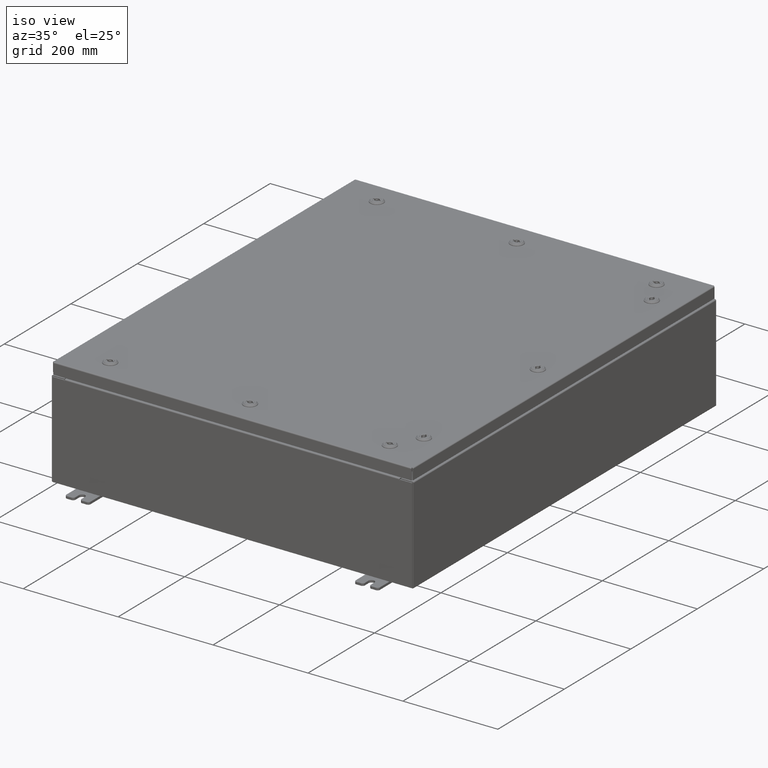
[diagram: clean part render]
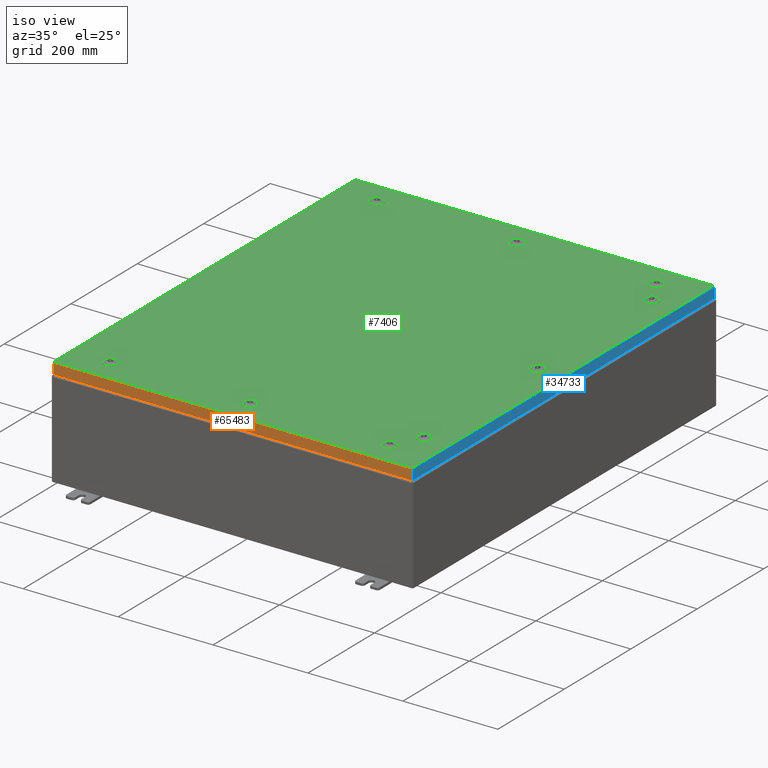
[diagram: same view with three faces highlighted in distinct colors, each labeled with its STEP entity id]
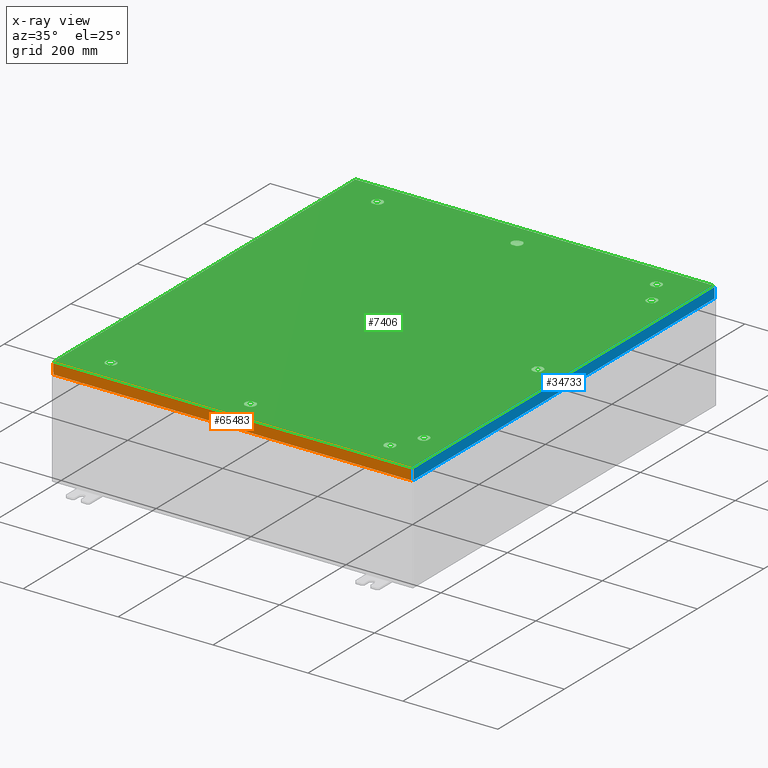
[diagram: x-ray of the same camera — body ghosted, the three highlighted faces saturated]
A machine part, iso view with three faces highlighted in distinct colors.
The next image is the same camera in x-ray (body ghosted, the three faces saturated) — at least one of them is partly hidden behind the body in this view.
Their STEP definitions:

[orange] entity #65483 — the highlighted planar face has unit normal (-0, 1, -0).
#252 = EDGE_CURVE ( 'NONE', #669, #10912, #28088, .T. ) ;
#669 = VERTEX_POINT ( 'NONE', #52515 ) ;
#2411 = VERTEX_POINT ( 'NONE', #59407 ) ;
#6523 = DIRECTION ( 'NONE',  ( -3.241995248935437300E-031, 1.000000000000000000, -2.532419924601866100E-015 ) ) ;
#6745 = ORIENTED_EDGE ( 'NONE', *, *, #37901, .F. ) ;
#10611 = EDGE_CURVE ( 'NONE', #2411, #669, #59364, .T. ) ;
#10912 = VERTEX_POINT ( 'NONE', #51334 ) ;
#11742 = ORIENTED_EDGE ( 'NONE', *, *, #65169, .T. ) ;
#13923 = VECTOR ( 'NONE', #45874, 39.37007874015748100 ) ;
#14615 = VECTOR ( 'NONE', #51066, 39.37007874015748100 ) ;
#16357 = VECTOR ( 'NONE', #19847, 39.37007874015748100 ) ;
#18735 = VECTOR ( 'NONE', #28824, 39.37007874015748100 ) ;
#19669 = EDGE_LOOP ( 'NONE', ( #6745, #11742, #43534, #46150 ) ) ;
#19847 = DIRECTION ( 'NONE',  ( 1.000000000000000000, 3.241995248935437300E-031, -8.117058051628660600E-046 ) ) ;
#27388 = LINE ( 'NONE', #35551, #13923 ) ;
#28088 = LINE ( 'NONE', #58294, #14615 ) ;
#28824 = DIRECTION ( 'NONE',  ( -0.0000000000000000000, -2.532419924601866100E-015, -1.000000000000000000 ) ) ;
#31858 = CARTESIAN_POINT ( 'NONE',  ( 5.815328977777940600E-030, -17.93750000000000000, 4.568609605355756000E-014 ) ) ;
#32441 = AXIS2_PLACEMENT_3D ( 'NONE', #31858, #6523, #42122 ) ;
#35551 = CARTESIAN_POINT ( 'NONE',  ( -14.84865786437627100, -17.93750000000000000, 4.568609605355756000E-014 ) ) ;
#37901 = EDGE_CURVE ( 'NONE', #61147, #2411, #56976, .T. ) ;
#42122 = DIRECTION ( 'NONE',  ( 0.0000000000000000000, 2.532419924601866100E-015, 1.000000000000000000 ) ) ;
#43320 = FACE_OUTER_BOUND ( 'NONE', #19669, .T. ) ;
#43534 = ORIENTED_EDGE ( 'NONE', *, *, #252, .F. ) ;
#45874 = DIRECTION ( 'NONE',  ( 0.0000000000000000000, -2.532419924601866100E-015, -1.000000000000000000 ) ) ;
#46150 = ORIENTED_EDGE ( 'NONE', *, *, #10611, .F. ) ;
#51066 = DIRECTION ( 'NONE',  ( -1.000000000000000000, 4.379057701015054300E-047, 1.280196549332207300E-016 ) ) ;
#51334 = CARTESIAN_POINT ( 'NONE',  ( -14.84865786437627300, -17.93750000000000400, -0.9376999999999958700 ) ) ;
#52515 = CARTESIAN_POINT ( 'NONE',  ( 14.84865786437626800, -17.93750000000000400, -0.9376999999999997600 ) ) ;
#56976 = LINE ( 'NONE', #60604, #16357 ) ;
#58294 = CARTESIAN_POINT ( 'NONE',  ( 14.93749999999999800, -17.93750000000000400, -0.9376999999999997600 ) ) ;
#59364 = LINE ( 'NONE', #64450, #18735 ) ;
#59407 = CARTESIAN_POINT ( 'NONE',  ( 14.84865786437626900, -17.93750000000000000, -0.08770000000000008300 ) ) ;
#60604 = CARTESIAN_POINT ( 'NONE',  ( 14.93749999999999800, -17.93750000000000000, -0.08770000000000008300 ) ) ;
#61147 = VERTEX_POINT ( 'NONE', #65081 ) ;
#62365 = PLANE ( 'NONE',  #32441 ) ;
#64450 = CARTESIAN_POINT ( 'NONE',  ( 14.84865786437626800, -17.93750000000000000, -0.07469999999999980800 ) ) ;
#65081 = CARTESIAN_POINT ( 'NONE',  ( -14.84865786437627300, -17.93750000000000000, -0.08770000000000008300 ) ) ;
#65169 = EDGE_CURVE ( 'NONE', #61147, #10912, #27388, .T. ) ;
#65483 = ADVANCED_FACE ( 'NONE', ( #43320 ), #62365, .F. ) ;

[blue] entity #34733 — the highlighted planar face has unit normal (1, 0, 0).
#2171 = CARTESIAN_POINT ( 'NONE',  ( 14.93749999999999800, 0.0000000000000000000, 3.808883627975194400E-014 ) ) ;
#2388 = DIRECTION ( 'NONE',  ( 2.532419924601866100E-015, 0.0000000000000000000, -1.000000000000000000 ) ) ;
#4165 = VECTOR ( 'NONE', #62617, 39.37007874015748100 ) ;
#4184 = EDGE_CURVE ( 'NONE', #55525, #7599, #36700, .T. ) ;
#6107 = AXIS2_PLACEMENT_3D ( 'NONE', #2171, #32822, #2388 ) ;
#6430 = EDGE_CURVE ( 'NONE', #7599, #63943, #52553, .T. ) ;
#7599 = VERTEX_POINT ( 'NONE', #64508 ) ;
#8464 = ORIENTED_EDGE ( 'NONE', *, *, #15959, .F. ) ;
#10302 = VECTOR ( 'NONE', #17336, 39.37007874015748100 ) ;
#11494 = ORIENTED_EDGE ( 'NONE', *, *, #6430, .T. ) ;
#15959 = EDGE_CURVE ( 'NONE', #34176, #63943, #30628, .T. ) ;
#16479 = FACE_OUTER_BOUND ( 'NONE', #41333, .T. ) ;
#17336 = DIRECTION ( 'NONE',  ( 0.0000000000000000000, -1.000000000000000000, 0.0000000000000000000 ) ) ;
#19645 = EDGE_CURVE ( 'NONE', #55525, #34176, #44804, .T. ) ;
#20293 = CARTESIAN_POINT ( 'NONE',  ( 14.93749999999999800, -17.84865786437627100, -0.08770000000000008300 ) ) ;
#20611 = DIRECTION ( 'NONE',  ( -2.532419924601866100E-015, -6.982962677686265900E-015, 1.000000000000000000 ) ) ;
#25781 = ORIENTED_EDGE ( 'NONE', *, *, #19645, .F. ) ;
#29024 = VECTOR ( 'NONE', #20611, 39.37007874015748100 ) ;
#30628 = LINE ( 'NONE', #51143, #29024 ) ;
#32822 = DIRECTION ( 'NONE',  ( 1.000000000000000000, 0.0000000000000000000, 2.532419924601866100E-015 ) ) ;
#33300 = CARTESIAN_POINT ( 'NONE',  ( 14.93749999999999800, 17.84865786437626800, 1.627253479934829100E-013 ) ) ;
#34176 = VERTEX_POINT ( 'NONE', #48978 ) ;
#34733 = ADVANCED_FACE ( 'NONE', ( #16479 ), #48011, .T. ) ;
#34812 = DIRECTION ( 'NONE',  ( -2.532419924601866100E-015, -6.982962677686265900E-015, 1.000000000000000000 ) ) ;
#36700 = LINE ( 'NONE', #33300, #62216 ) ;
#37242 = CARTESIAN_POINT ( 'NONE',  ( 14.93750000000000000, 17.84865786437627500, -0.9376999999999997600 ) ) ;
#40558 = ORIENTED_EDGE ( 'NONE', *, *, #4184, .T. ) ;
#41333 = EDGE_LOOP ( 'NONE', ( #8464, #25781, #40558, #11494 ) ) ;
#44804 = LINE ( 'NONE', #57532, #4165 ) ;
#48011 = PLANE ( 'NONE',  #6107 ) ;
#48978 = CARTESIAN_POINT ( 'NONE',  ( 14.93750000000000000, -17.84865786437626400, -0.9376999999999997600 ) ) ;
#51143 = CARTESIAN_POINT ( 'NONE',  ( 14.93749999999999800, -17.84865786437627100, -0.07469999999999980800 ) ) ;
#52553 = LINE ( 'NONE', #59204, #10302 ) ;
#55525 = VERTEX_POINT ( 'NONE', #37242 ) ;
#57532 = CARTESIAN_POINT ( 'NONE',  ( 14.93750000000000000, -17.93750000000000000, -0.9376999999999997600 ) ) ;
#59204 = CARTESIAN_POINT ( 'NONE',  ( 14.93749999999999800, 0.0000000000000000000, -0.08770000000000008300 ) ) ;
#62216 = VECTOR ( 'NONE', #34812, 39.37007874015748100 ) ;
#62617 = DIRECTION ( 'NONE',  ( 0.0000000000000000000, -1.000000000000000000, 0.0000000000000000000 ) ) ;
#63943 = VERTEX_POINT ( 'NONE', #20293 ) ;
#64508 = CARTESIAN_POINT ( 'NONE',  ( 14.93749999999999800, 17.84865786437626800, -0.08770000000000008300 ) ) ;

[green] entity #7406 — the highlighted planar face has unit normal (0, 0, -1).
#269 = CARTESIAN_POINT ( 'NONE',  ( 12.39280000000001400, 13.69945237526790600, 0.0000000000000000000 ) ) ;
#454 = ORIENTED_EDGE ( 'NONE', *, *, #30860, .F. ) ;
#531 = CARTESIAN_POINT ( 'NONE',  ( -11.36304762473210200, 15.39279999999999400, 0.0000000000000000000 ) ) ;
#721 = VECTOR ( 'NONE', #32742, 39.37007874015748100 ) ;
#754 = DIRECTION ( 'NONE',  ( -1.000000000000000000, -1.095739467627832000E-014, 6.982962677686228800E-015 ) ) ;
#850 = CIRCLE ( 'NONE', #55730, 0.4424999999999983400 ) ;
#967 = CARTESIAN_POINT ( 'NONE',  ( 1.529834876451987200E-014, -15.78779999999999000, -2.521317385144146900E-013 ) ) ;
#1518 = AXIS2_PLACEMENT_3D ( 'NONE', #9059, #13785, #56111 ) ;
#2067 = EDGE_LOOP ( 'NONE', ( #45513, #25975, #42009, #25645 ) ) ;
#2258 = VERTEX_POINT ( 'NONE', #27779 ) ;
#2444 = ORIENTED_EDGE ( 'NONE', *, *, #21033, .F. ) ;
#2771 = ORIENTED_EDGE ( 'NONE', *, *, #16721, .F. ) ;
#3275 = ORIENTED_EDGE ( 'NONE', *, *, #40839, .F. ) ;
#3328 = VERTEX_POINT ( 'NONE', #6150 ) ;
#3369 = DIRECTION ( 'NONE',  ( 0.0000000000000000000, 1.000000000000000000, 6.982962677686304600E-015 ) ) ;
#3390 = AXIS2_PLACEMENT_3D ( 'NONE', #7861, #43468, #13014 ) ;
#3468 = DIRECTION ( 'NONE',  ( -0.0000000000000000000, -6.982962677686266700E-015, 1.000000000000000000 ) ) ;
#3713 = DIRECTION ( 'NONE',  ( -1.000000000000000000, 0.0000000000000000000, 6.982962677686304600E-015 ) ) ;
#3744 = EDGE_LOOP ( 'NONE', ( #12510, #50078, #24791, #27893, #60855 ) ) ;
#3819 = DIRECTION ( 'NONE',  ( 1.000000000000000000, 0.0000000000000000000, 0.0000000000000000000 ) ) ;
#3986 = DIRECTION ( 'NONE',  ( 1.000000000000000000, 0.0000000000000000000, 0.0000000000000000000 ) ) ;
#4003 = EDGE_CURVE ( 'NONE', #45943, #57057, #31163, .T. ) ;
#4035 = CARTESIAN_POINT ( 'NONE',  ( 12.78780000000000600, 13.50000000000001800, 0.0000000000000000000 ) ) ;
#4257 = CARTESIAN_POINT ( 'NONE',  ( 11.36304762473210100, -15.39279999999999900, -7.914855633430593000E-015 ) ) ;
#4520 = CARTESIAN_POINT ( 'NONE',  ( 13.18280000000000400, 13.30054762473213300, 0.0000000000000000000 ) ) ;
#4746 = VERTEX_POINT ( 'NONE', #23332 ) ;
#4794 = CARTESIAN_POINT ( 'NONE',  ( 11.36304762473209400, 16.18279999999998600, -2.414586126232980000E-013 ) ) ;
#4993 = LINE ( 'NONE', #31382, #18527 ) ;
#5198 = EDGE_LOOP ( 'NONE', ( #21999, #19514, #23382, #28560, #2444 ) ) ;
#5202 = VECTOR ( 'NONE', #21405, 39.37007874015748100 ) ;
#5350 = DIRECTION ( 'NONE',  ( 0.0000000000000000000, 0.0000000000000000000, 1.000000000000000000 ) ) ;
#5376 = ORIENTED_EDGE ( 'NONE', *, *, #34425, .F. ) ;
#5858 = EDGE_CURVE ( 'NONE', #50811, #16127, #39759, .T. ) ;
#6003 = CIRCLE ( 'NONE', #46167, 0.4424999999999983400 ) ;
#6016 = CARTESIAN_POINT ( 'NONE',  ( 0.4425000000000126100, 15.78779999999999000, 0.0000000000000000000 ) ) ;
#6054 = DIRECTION ( 'NONE',  ( 0.0000000000000000000, 0.0000000000000000000, 1.000000000000000000 ) ) ;
#6065 = DIRECTION ( 'NONE',  ( 0.0000000000000000000, 1.000000000000000000, 6.982962677686304600E-015 ) ) ;
#6150 = CARTESIAN_POINT ( 'NONE',  ( 12.39280000000001400, -13.69945237526790600, -9.566276464123621500E-014 ) ) ;
#6160 = CIRCLE ( 'NONE', #20458, 0.4424999999999961700 ) ;
#6305 = EDGE_CURVE ( 'NONE', #31600, #45086, #40535, .T. ) ;
#6397 = CARTESIAN_POINT ( 'NONE',  ( 0.1994523752678995500, 15.39279999999999400, 0.0000000000000000000 ) ) ;
#6592 = VERTEX_POINT ( 'NONE', #63791 ) ;
#6792 = LINE ( 'NONE', #31623, #5202 ) ;
#6885 = CIRCLE ( 'NONE', #19961, 0.4424999999999983400 ) ;
#7019 = CARTESIAN_POINT ( 'NONE',  ( -0.1994523752678657400, -16.18279999999998600, 0.0000000000000000000 ) ) ;
#7039 = AXIS2_PLACEMENT_3D ( 'NONE', #50595, #18266, #19418 ) ;
#7054 = FACE_BOUND ( 'NONE', #5198, .T. ) ;
#7103 = EDGE_CURVE ( 'NONE', #24029, #49503, #58867, .T. ) ;
#7294 = DIRECTION ( 'NONE',  ( 1.000000000000000000, -0.0000000000000000000, -0.0000000000000000000 ) ) ;
#7406 = ADVANCED_FACE ( 'NONE', ( #11867, #8658, #61206, #47674, #34075, #20568, #7054, #59617, #46095, #32491 ), #65594, .F. ) ;
#7540 = AXIS2_PLACEMENT_3D ( 'NONE', #35778, #5350, #40906 ) ;
#7633 = CARTESIAN_POINT ( 'NONE',  ( -11.11999999999998900, 15.78779999999999000, 0.0000000000000000000 ) ) ;
#7733 = DIRECTION ( 'NONE',  ( 5.478697338139220100E-015, 1.000000000000000000, 6.982962677686228100E-015 ) ) ;
#7773 = CARTESIAN_POINT ( 'NONE',  ( 1.529834876451987200E-014, 15.78779999999999000, 0.0000000000000000000 ) ) ;
#7861 = CARTESIAN_POINT ( 'NONE',  ( 12.78780000000000600, -13.50000000000001800, -9.426999614876466400E-014 ) ) ;
#7995 = CARTESIAN_POINT ( 'NONE',  ( -0.1994523752678689600, 15.39279999999999400, 0.0000000000000000000 ) ) ;
#8046 = ORIENTED_EDGE ( 'NONE', *, *, #59420, .F. ) ;
#8048 = EDGE_CURVE ( 'NONE', #49091, #12746, #35615, .T. ) ;
#8108 = VERTEX_POINT ( 'NONE', #47206 ) ;
#8117 = CARTESIAN_POINT ( 'NONE',  ( -11.36304762473210200, 15.39279999999999400, 0.0000000000000000000 ) ) ;
#8658 = FACE_BOUND ( 'NONE', #14146, .T. ) ;
#8736 = VERTEX_POINT ( 'NONE', #32138 ) ;
#8757 = ORIENTED_EDGE ( 'NONE', *, *, #40297, .F. ) ;
#9004 = VERTEX_POINT ( 'NONE', #24544 ) ;
#9059 = CARTESIAN_POINT ( 'NONE',  ( 11.56249999999998200, -15.78779999999999500, -9.280357398645127900E-015 ) ) ;
#9079 = AXIS2_PLACEMENT_3D ( 'NONE', #7773, #11603, #3986 ) ;
#9133 = DIRECTION ( 'NONE',  ( 1.000000000000000000, 0.0000000000000000000, 0.0000000000000000000 ) ) ;
#9191 = VECTOR ( 'NONE', #33020, 39.37007874015748100 ) ;
#9270 = CARTESIAN_POINT ( 'NONE',  ( 1.529834876451987200E-014, -15.78779999999999000, -2.521317385144146900E-013 ) ) ;
#9521 = CIRCLE ( 'NONE', #55465, 0.4424999999999969000 ) ;
#10437 = CARTESIAN_POINT ( 'NONE',  ( 0.0000000000000000000, 0.0000000000000000000, 0.0000000000000000000 ) ) ;
#10795 = CARTESIAN_POINT ( 'NONE',  ( 12.39280000000001400, 13.69945237526790600, 0.0000000000000000000 ) ) ;
#11059 = EDGE_CURVE ( 'NONE', #61762, #6592, #6885, .T. ) ;
#11463 = VERTEX_POINT ( 'NONE', #65662 ) ;
#11576 = DIRECTION ( 'NONE',  ( -1.000000000000000000, -0.0000000000000000000, -0.0000000000000000000 ) ) ;
#11603 = DIRECTION ( 'NONE',  ( 0.0000000000000000000, 0.0000000000000000000, 1.000000000000000000 ) ) ;
#11867 = FACE_BOUND ( 'NONE', #55023, .T. ) ;
#11923 = DIRECTION ( 'NONE',  ( 0.0000000000000000000, 0.0000000000000000000, 1.000000000000000000 ) ) ;
#12054 = CARTESIAN_POINT ( 'NONE',  ( -11.56249999999998800, 15.78779999999999000, 0.0000000000000000000 ) ) ;
#12510 = ORIENTED_EDGE ( 'NONE', *, *, #8048, .F. ) ;
#12697 = LINE ( 'NONE', #13401, #24559 ) ;
#12746 = VERTEX_POINT ( 'NONE', #13775 ) ;
#12825 = CIRCLE ( 'NONE', #32659, 0.4424999999999983400 ) ;
#13014 = DIRECTION ( 'NONE',  ( 0.0000000000000000000, 1.000000000000000000, 6.982962677686270700E-015 ) ) ;
#13039 = AXIS2_PLACEMENT_3D ( 'NONE', #17551, #53176, #22633 ) ;
#13328 = AXIS2_PLACEMENT_3D ( 'NONE', #64761, #34233, #3819 ) ;
#13392 = EDGE_CURVE ( 'NONE', #40341, #40304, #6160, .T. ) ;
#13401 = CARTESIAN_POINT ( 'NONE',  ( 13.18280000000000200, 0.1994523752679009100, 0.0000000000000000000 ) ) ;
#13775 = CARTESIAN_POINT ( 'NONE',  ( 0.1994523752679070700, -16.18279999999998300, -2.548900087721007400E-013 ) ) ;
#13785 = DIRECTION ( 'NONE',  ( -6.982962677686266700E-015, -6.982962677686266700E-015, 1.000000000000000000 ) ) ;
#14048 = ORIENTED_EDGE ( 'NONE', *, *, #11059, .F. ) ;
#14097 = CARTESIAN_POINT ( 'NONE',  ( -11.36304762473209400, 16.18279999999998300, 0.0000000000000000000 ) ) ;
#14146 = EDGE_LOOP ( 'NONE', ( #28983, #46299, #46377, #33483 ) ) ;
#14338 = ORIENTED_EDGE ( 'NONE', *, *, #4003, .F. ) ;
#14351 = CARTESIAN_POINT ( 'NONE',  ( 11.56249999999998800, 15.78779999999999500, -2.428513811157696100E-013 ) ) ;
#14438 = DIRECTION ( 'NONE',  ( 0.0000000000000000000, 1.000000000000000000, 6.982962677686270700E-015 ) ) ;
#14711 = CARTESIAN_POINT ( 'NONE',  ( -11.36304762473210200, -15.39279999999999900, -2.493734682567286900E-013 ) ) ;
#15295 = CARTESIAN_POINT ( 'NONE',  ( 11.76195237526786600, -16.18279999999999000, -1.064585916385969600E-014 ) ) ;
#15320 = ORIENTED_EDGE ( 'NONE', *, *, #7103, .F. ) ;
#15505 = VERTEX_POINT ( 'NONE', #48034 ) ;
#15520 = CARTESIAN_POINT ( 'NONE',  ( -14.84980000000000200, -17.84980000000000200, -2.048885995248197400E-016 ) ) ;
#15569 = DIRECTION ( 'NONE',  ( 1.000000000000000000, 1.095739467627832000E-014, 7.785697190085955000E-029 ) ) ;
#15835 = CARTESIAN_POINT ( 'NONE',  ( 11.56249999999998800, 15.78779999999999500, -2.428513811157696100E-013 ) ) ;
#15942 = VECTOR ( 'NONE', #56242, 39.37007874015748100 ) ;
#16094 = VECTOR ( 'NONE', #55227, 39.37007874015748100 ) ;
#16127 = VERTEX_POINT ( 'NONE', #36593 ) ;
#16210 = VECTOR ( 'NONE', #25594, 39.37007874015748100 ) ;
#16376 = ORIENTED_EDGE ( 'NONE', *, *, #18540, .F. ) ;
#16461 = DIRECTION ( 'NONE',  ( -1.000000000000000000, -0.0000000000000000000, -6.982962677686306200E-015 ) ) ;
#16487 = CARTESIAN_POINT ( 'NONE',  ( 0.4425000000000126100, -15.78779999999999000, -2.521317385144146900E-013 ) ) ;
#16569 = CARTESIAN_POINT ( 'NONE',  ( 0.1994523752678995500, -15.39279999999999400, -2.493734682567286900E-013 ) ) ;
#16721 = EDGE_CURVE ( 'NONE', #34699, #31600, #41759, .T. ) ;
#17071 = VECTOR ( 'NONE', #41670, 39.37007874015748100 ) ;
#17082 = DIRECTION ( 'NONE',  ( -0.0000000000000000000, -6.982962677686266700E-015, 1.000000000000000000 ) ) ;
#17159 = DIRECTION ( 'NONE',  ( 1.000000000000000000, 0.0000000000000000000, 0.0000000000000000000 ) ) ;
#17210 = EDGE_CURVE ( 'NONE', #37654, #11463, #18653, .T. ) ;
#17226 = DIRECTION ( 'NONE',  ( -6.982962677686266700E-015, -6.982962677686266700E-015, 1.000000000000000000 ) ) ;
#17551 = CARTESIAN_POINT ( 'NONE',  ( 11.56249999999998200, -15.78779999999999500, -9.280357398645127900E-015 ) ) ;
#18266 = DIRECTION ( 'NONE',  ( -0.0000000000000000000, -6.982962677686266700E-015, 1.000000000000000000 ) ) ;
#18527 = VECTOR ( 'NONE', #21163, 39.37007874015748100 ) ;
#18540 = EDGE_CURVE ( 'NONE', #37340, #41142, #25718, .T. ) ;
#18653 = LINE ( 'NONE', #16569, #17071 ) ;
#18854 = EDGE_CURVE ( 'NONE', #39746, #43164, #31280, .T. ) ;
#19414 = DIRECTION ( 'NONE',  ( -1.000000000000000000, 0.0000000000000000000, 6.982962677686270700E-015 ) ) ;
#19417 = LINE ( 'NONE', #26662, #31342 ) ;
#19418 = DIRECTION ( 'NONE',  ( 0.0000000000000000000, 1.000000000000000000, 6.982962677686270700E-015 ) ) ;
#19514 = ORIENTED_EDGE ( 'NONE', *, *, #63478, .F. ) ;
#19759 = DIRECTION ( 'NONE',  ( 0.0000000000000000000, -1.000000000000000000, 0.0000000000000000000 ) ) ;
#19961 = AXIS2_PLACEMENT_3D ( 'NONE', #42380, #11923, #47520 ) ;
#20231 = CIRCLE ( 'NONE', #13328, 0.4424999999999961700 ) ;
#20303 = LINE ( 'NONE', #46794, #45838 ) ;
#20422 = CARTESIAN_POINT ( 'NONE',  ( 11.36304762473210200, 15.39279999999999900, -2.414586126232981000E-013 ) ) ;
#20458 = AXIS2_PLACEMENT_3D ( 'NONE', #64295, #33787, #3369 ) ;
#20552 = VECTOR ( 'NONE', #59358, 39.37007874015748100 ) ;
#20568 = FACE_BOUND ( 'NONE', #3744, .T. ) ;
#20676 = EDGE_LOOP ( 'NONE', ( #35809, #63502, #22575, #49038 ) ) ;
#20907 = DIRECTION ( 'NONE',  ( -1.000000000000000000, 0.0000000000000000000, 6.982962677686304600E-015 ) ) ;
#20933 = VECTOR ( 'NONE', #42586, 39.37007874015748100 ) ;
#21033 = EDGE_CURVE ( 'NONE', #35074, #23593, #23178, .T. ) ;
#21087 = VERTEX_POINT ( 'NONE', #4520 ) ;
#21163 = DIRECTION ( 'NONE',  ( -1.095739467627836100E-014, -1.000000000000000000, 0.0000000000000000000 ) ) ;
#21219 = DIRECTION ( 'NONE',  ( 0.0000000000000000000, 0.0000000000000000000, 1.000000000000000000 ) ) ;
#21405 = DIRECTION ( 'NONE',  ( -5.478697338139220100E-015, 1.000000000000000000, -0.0000000000000000000 ) ) ;
#21999 = ORIENTED_EDGE ( 'NONE', *, *, #64101, .F. ) ;
#22575 = ORIENTED_EDGE ( 'NONE', *, *, #65403, .T. ) ;
#22633 = DIRECTION ( 'NONE',  ( 1.000000000000000000, 0.0000000000000000000, 6.982962677686252500E-015 ) ) ;
#22651 = CARTESIAN_POINT ( 'NONE',  ( 12.39280000000001000, 13.30054762473213400, 0.0000000000000000000 ) ) ;
#22868 = EDGE_CURVE ( 'NONE', #23593, #2258, #35794, .T. ) ;
#23178 = CIRCLE ( 'NONE', #63971, 0.4424999999999983400 ) ;
#23332 = CARTESIAN_POINT ( 'NONE',  ( 12.39280000000001000, -0.1994523752678671000, 0.0000000000000000000 ) ) ;
#23380 = EDGE_CURVE ( 'NONE', #31252, #45943, #58217, .T. ) ;
#23382 = ORIENTED_EDGE ( 'NONE', *, *, #47038, .F. ) ;
#23467 = CARTESIAN_POINT ( 'NONE',  ( 11.36304762473210200, 15.39279999999999900, -2.414586126232981000E-013 ) ) ;
#23560 = DIRECTION ( 'NONE',  ( -5.478697338139235000E-015, 1.000000000000000000, -0.0000000000000000000 ) ) ;
#23593 = VERTEX_POINT ( 'NONE', #23467 ) ;
#24029 = VERTEX_POINT ( 'NONE', #40007 ) ;
#24356 = VERTEX_POINT ( 'NONE', #41570 ) ;
#24481 = ORIENTED_EDGE ( 'NONE', *, *, #5858, .F. ) ;
#24544 = CARTESIAN_POINT ( 'NONE',  ( 11.76195237526786700, 16.18279999999999000, 0.0000000000000000000 ) ) ;
#24559 = VECTOR ( 'NONE', #23560, 39.37007874015748100 ) ;
#24788 = CARTESIAN_POINT ( 'NONE',  ( 1.529834876451987200E-014, -15.78779999999999000, -2.521317385144146900E-013 ) ) ;
#24791 = ORIENTED_EDGE ( 'NONE', *, *, #17210, .F. ) ;
#25191 = DIRECTION ( 'NONE',  ( 0.0000000000000000000, 0.0000000000000000000, 1.000000000000000000 ) ) ;
#25220 = CARTESIAN_POINT ( 'NONE',  ( 0.1994523752678995500, 15.39279999999999400, 0.0000000000000000000 ) ) ;
#25257 = ORIENTED_EDGE ( 'NONE', *, *, #44994, .F. ) ;
#25355 = LINE ( 'NONE', #43353, #52483 ) ;
#25380 = CARTESIAN_POINT ( 'NONE',  ( 12.00499999999998300, 15.78779999999999500, -2.459413421006457100E-013 ) ) ;
#25538 = ORIENTED_EDGE ( 'NONE', *, *, #23380, .F. ) ;
#25564 = VERTEX_POINT ( 'NONE', #40051 ) ;
#25594 = DIRECTION ( 'NONE',  ( -1.095739467627838000E-014, -1.000000000000000000, 0.0000000000000000000 ) ) ;
#25625 = CARTESIAN_POINT ( 'NONE',  ( 13.18280000000000400, -13.30054762473213300, -9.287722765629316300E-014 ) ) ;
#25645 = ORIENTED_EDGE ( 'NONE', *, *, #42605, .F. ) ;
#25718 = CIRCLE ( 'NONE', #3390, 0.4424999999999983400 ) ;
#25975 = ORIENTED_EDGE ( 'NONE', *, *, #37940, .F. ) ;
#26271 = CARTESIAN_POINT ( 'NONE',  ( -11.76195237526786700, -16.18279999999999000, 0.0000000000000000000 ) ) ;
#26662 = CARTESIAN_POINT ( 'NONE',  ( 14.84979999999999700, 17.84979999999999800, -2.048885995248197400E-016 ) ) ;
#27480 = EDGE_CURVE ( 'NONE', #49503, #61762, #36822, .T. ) ;
#27495 = CARTESIAN_POINT ( 'NONE',  ( -11.36304762473209400, -16.18279999999998600, -2.548900087721007400E-013 ) ) ;
#27779 = CARTESIAN_POINT ( 'NONE',  ( 11.76195237526786900, 15.39279999999999900, -2.442441496082410700E-013 ) ) ;
#27893 = ORIENTED_EDGE ( 'NONE', *, *, #32205, .F. ) ;
#27907 = CARTESIAN_POINT ( 'NONE',  ( 11.36304762473209200, -16.18279999999998600, -1.343139614880271000E-014 ) ) ;
#28044 = VERTEX_POINT ( 'NONE', #50208 ) ;
#28457 = CARTESIAN_POINT ( 'NONE',  ( 12.78780000000000600, 1.529834876451990400E-014, 0.0000000000000000000 ) ) ;
#28530 = CIRCLE ( 'NONE', #58454, 0.4424999999999983400 ) ;
#28533 = VECTOR ( 'NONE', #7294, 39.37007874015748100 ) ;
#28560 = ORIENTED_EDGE ( 'NONE', *, *, #22868, .F. ) ;
#28775 = CARTESIAN_POINT ( 'NONE',  ( -11.36304762473210200, -15.39279999999999900, -2.493734682567286900E-013 ) ) ;
#28983 = ORIENTED_EDGE ( 'NONE', *, *, #64121, .F. ) ;
#29107 = EDGE_CURVE ( 'NONE', #45086, #40341, #39879, .T. ) ;
#29175 = ORIENTED_EDGE ( 'NONE', *, *, #31672, .F. ) ;
#29907 = DIRECTION ( 'NONE',  ( 0.0000000000000000000, 1.000000000000000000, 6.982962677686270700E-015 ) ) ;
#30165 = VECTOR ( 'NONE', #44578, 39.37007874015748100 ) ;
#30308 = CARTESIAN_POINT ( 'NONE',  ( 13.18280000000000200, -13.69945237526790100, -9.566276464123617700E-014 ) ) ;
#30648 = DIRECTION ( 'NONE',  ( 1.000000000000000000, 0.0000000000000000000, -6.982962677686265900E-015 ) ) ;
#30860 = EDGE_CURVE ( 'NONE', #46683, #31252, #9521, .T. ) ;
#31163 = CIRCLE ( 'NONE', #9079, 0.4424999999999973400 ) ;
#31252 = VERTEX_POINT ( 'NONE', #7995 ) ;
#31280 = LINE ( 'NONE', #269, #16210 ) ;
#31290 = EDGE_CURVE ( 'NONE', #48101, #28044, #37323, .T. ) ;
#31342 = VECTOR ( 'NONE', #11576, 39.37007874015748100 ) ;
#31372 = CARTESIAN_POINT ( 'NONE',  ( -11.76195237526786900, -15.39279999999999900, -2.493734682567286400E-013 ) ) ;
#31382 = CARTESIAN_POINT ( 'NONE',  ( 12.39280000000001400, 0.1994523752679053800, 0.0000000000000000000 ) ) ;
#31600 = VERTEX_POINT ( 'NONE', #36406 ) ;
#31623 = CARTESIAN_POINT ( 'NONE',  ( 13.18280000000000200, 13.69945237526790100, 0.0000000000000000000 ) ) ;
#31672 = EDGE_CURVE ( 'NONE', #63603, #50811, #41318, .T. ) ;
#32138 = CARTESIAN_POINT ( 'NONE',  ( 12.39280000000001400, 0.1994523752679062100, 0.0000000000000000000 ) ) ;
#32205 = EDGE_CURVE ( 'NONE', #57086, #37654, #28530, .T. ) ;
#32323 = CARTESIAN_POINT ( 'NONE',  ( 14.84979999999999700, -17.84979999999999800, -2.048885995248197400E-016 ) ) ;
#32491 = FACE_OUTER_BOUND ( 'NONE', #20676, .T. ) ;
#32602 = LINE ( 'NONE', #15520, #15942 ) ;
#32659 = AXIS2_PLACEMENT_3D ( 'NONE', #4035, #39573, #9133 ) ;
#32742 = DIRECTION ( 'NONE',  ( -1.000000000000000000, 1.095739467627836100E-014, 0.0000000000000000000 ) ) ;
#33020 = DIRECTION ( 'NONE',  ( 1.000000000000000000, -1.095739467627832000E-014, 6.982962677686152300E-015 ) ) ;
#33483 = ORIENTED_EDGE ( 'NONE', *, *, #64901, .F. ) ;
#33587 = DIRECTION ( 'NONE',  ( 1.000000000000000000, 0.0000000000000000000, 0.0000000000000000000 ) ) ;
#33787 = DIRECTION ( 'NONE',  ( -0.0000000000000000000, -6.982962677686266700E-015, 1.000000000000000000 ) ) ;
#33890 = CARTESIAN_POINT ( 'NONE',  ( -11.56249999999998800, -15.78779999999999500, -2.521317385144146900E-013 ) ) ;
#34075 = FACE_BOUND ( 'NONE', #45821, .T. ) ;
#34130 = DIRECTION ( 'NONE',  ( 6.982962677686266700E-015, -0.0000000000000000000, 1.000000000000000000 ) ) ;
#34142 = CARTESIAN_POINT ( 'NONE',  ( 12.39280000000001400, -13.69945237526790600, -9.566276464123621500E-014 ) ) ;
#34233 = DIRECTION ( 'NONE',  ( 0.0000000000000000000, 0.0000000000000000000, 1.000000000000000000 ) ) ;
#34425 = EDGE_CURVE ( 'NONE', #40304, #34699, #51528, .T. ) ;
#34426 = LINE ( 'NONE', #32323, #20933 ) ;
#34629 = EDGE_CURVE ( 'NONE', #3328, #56002, #60247, .T. ) ;
#34699 = VERTEX_POINT ( 'NONE', #27495 ) ;
#34922 = CARTESIAN_POINT ( 'NONE',  ( 0.1994523752679067700, -16.18279999999998300, -2.548900087721007400E-013 ) ) ;
#35074 = VERTEX_POINT ( 'NONE', #4794 ) ;
#35150 = AXIS2_PLACEMENT_3D ( 'NONE', #10437, #53009, #53104 ) ;
#35188 = ORIENTED_EDGE ( 'NONE', *, *, #59554, .F. ) ;
#35615 = LINE ( 'NONE', #34922, #47610 ) ;
#35778 = CARTESIAN_POINT ( 'NONE',  ( -11.56249999999998800, 15.78779999999999000, 0.0000000000000000000 ) ) ;
#35794 = LINE ( 'NONE', #20422, #61321 ) ;
#35809 = ORIENTED_EDGE ( 'NONE', *, *, #57922, .T. ) ;
#36406 = CARTESIAN_POINT ( 'NONE',  ( -11.11999999999998900, -15.78779999999999500, -2.521317385144146900E-013 ) ) ;
#36473 = CARTESIAN_POINT ( 'NONE',  ( 1.529834876451987200E-014, 15.78779999999999000, 0.0000000000000000000 ) ) ;
#36485 = DIRECTION ( 'NONE',  ( -0.0000000000000000000, -6.982962677686266700E-015, 1.000000000000000000 ) ) ;
#36593 = CARTESIAN_POINT ( 'NONE',  ( 11.36304762473209200, -16.18279999999998600, -1.343139614880270700E-014 ) ) ;
#36822 = CIRCLE ( 'NONE', #38612, 0.4424999999999983400 ) ;
#37323 = LINE ( 'NONE', #40004, #62854 ) ;
#37340 = VERTEX_POINT ( 'NONE', #25625 ) ;
#37654 = VERTEX_POINT ( 'NONE', #53629 ) ;
#37940 = EDGE_CURVE ( 'NONE', #4746, #15505, #6003, .T. ) ;
#37941 = ORIENTED_EDGE ( 'NONE', *, *, #56907, .F. ) ;
#38265 = ORIENTED_EDGE ( 'NONE', *, *, #13392, .F. ) ;
#38612 = AXIS2_PLACEMENT_3D ( 'NONE', #12054, #47646, #17159 ) ;
#38770 = AXIS2_PLACEMENT_3D ( 'NONE', #64665, #34130, #3713 ) ;
#39014 = DIRECTION ( 'NONE',  ( 0.0000000000000000000, 1.000000000000000000, 6.982962677686270700E-015 ) ) ;
#39161 = CARTESIAN_POINT ( 'NONE',  ( -0.1994523752678657400, 16.18279999999998600, 0.0000000000000000000 ) ) ;
#39498 = VECTOR ( 'NONE', #15569, 39.37007874015748100 ) ;
#39558 = VERTEX_POINT ( 'NONE', #55135 ) ;
#39573 = DIRECTION ( 'NONE',  ( 0.0000000000000000000, 0.0000000000000000000, 1.000000000000000000 ) ) ;
#39684 = CARTESIAN_POINT ( 'NONE',  ( 11.76195237526786700, -15.39279999999999900, 0.0000000000000000000 ) ) ;
#39746 = VERTEX_POINT ( 'NONE', #10795 ) ;
#39759 = CIRCLE ( 'NONE', #1518, 0.4424999999999961700 ) ;
#39879 = LINE ( 'NONE', #14711, #16094 ) ;
#40004 = CARTESIAN_POINT ( 'NONE',  ( -14.84980000000000200, 17.84979999999999800, -2.048885995248197400E-016 ) ) ;
#40007 = CARTESIAN_POINT ( 'NONE',  ( -11.76195237526786900, 15.39279999999999400, 0.0000000000000000000 ) ) ;
#40051 = CARTESIAN_POINT ( 'NONE',  ( 0.1994523752679068500, 16.18279999999998300, 0.0000000000000000000 ) ) ;
#40244 = VERTEX_POINT ( 'NONE', #56577 ) ;
#40297 = EDGE_CURVE ( 'NONE', #57057, #25564, #49553, .T. ) ;
#40304 = VERTEX_POINT ( 'NONE', #26271 ) ;
#40341 = VERTEX_POINT ( 'NONE', #31372 ) ;
#40535 = CIRCLE ( 'NONE', #7039, 0.4424999999999983400 ) ;
#40839 = EDGE_CURVE ( 'NONE', #58588, #63480, #60645, .T. ) ;
#40906 = DIRECTION ( 'NONE',  ( 1.000000000000000000, 0.0000000000000000000, 0.0000000000000000000 ) ) ;
#41142 = VERTEX_POINT ( 'NONE', #50231 ) ;
#41157 = CARTESIAN_POINT ( 'NONE',  ( 13.18280000000000200, 0.1994523752679009100, 0.0000000000000000000 ) ) ;
#41283 = LINE ( 'NONE', #63253, #721 ) ;
#41318 = LINE ( 'NONE', #46933, #53326 ) ;
#41461 = VECTOR ( 'NONE', #57161, 39.37007874015748100 ) ;
#41570 = CARTESIAN_POINT ( 'NONE',  ( 13.18280000000000200, 13.69945237526790100, 0.0000000000000000000 ) ) ;
#41631 = DIRECTION ( 'NONE',  ( 1.000000000000000000, 0.0000000000000000000, 0.0000000000000000000 ) ) ;
#41670 = DIRECTION ( 'NONE',  ( -1.000000000000000000, 0.0000000000000000000, 7.785697190086061500E-029 ) ) ;
#41759 = CIRCLE ( 'NONE', #58129, 0.4424999999999983400 ) ;
#42009 = ORIENTED_EDGE ( 'NONE', *, *, #53964, .F. ) ;
#42150 = ORIENTED_EDGE ( 'NONE', *, *, #44272, .F. ) ;
#42380 = CARTESIAN_POINT ( 'NONE',  ( -11.56249999999998800, 15.78779999999999000, 0.0000000000000000000 ) ) ;
#42586 = DIRECTION ( 'NONE',  ( 0.0000000000000000000, 1.000000000000000000, 0.0000000000000000000 ) ) ;
#42605 = EDGE_CURVE ( 'NONE', #47087, #8736, #850, .T. ) ;
#43164 = VERTEX_POINT ( 'NONE', #22651 ) ;
#43353 = CARTESIAN_POINT ( 'NONE',  ( 13.18280000000000200, -13.69945237526790100, -9.566276464123617700E-014 ) ) ;
#43468 = DIRECTION ( 'NONE',  ( -0.0000000000000000000, -6.982962677686266700E-015, 1.000000000000000000 ) ) ;
#44272 = EDGE_CURVE ( 'NONE', #25564, #46683, #41283, .T. ) ;
#44578 = DIRECTION ( 'NONE',  ( -1.000000000000000000, 1.095739467627832000E-014, 0.0000000000000000000 ) ) ;
#44816 = AXIS2_PLACEMENT_3D ( 'NONE', #15835, #51443, #20907 ) ;
#44904 = DIRECTION ( 'NONE',  ( -0.0000000000000000000, -6.982962677686266700E-015, 1.000000000000000000 ) ) ;
#44913 = AXIS2_PLACEMENT_3D ( 'NONE', #47564, #17082, #52711 ) ;
#44994 = EDGE_CURVE ( 'NONE', #6592, #39558, #57307, .T. ) ;
#45086 = VERTEX_POINT ( 'NONE', #28775 ) ;
#45513 = ORIENTED_EDGE ( 'NONE', *, *, #59065, .F. ) ;
#45645 = CIRCLE ( 'NONE', #53980, 0.4424999999999961700 ) ;
#45821 = EDGE_LOOP ( 'NONE', ( #5376, #38265, #52765, #46964, #2771 ) ) ;
#45838 = VECTOR ( 'NONE', #754, 39.37007874015748100 ) ;
#45943 = VERTEX_POINT ( 'NONE', #25220 ) ;
#46051 = CARTESIAN_POINT ( 'NONE',  ( -11.36304762473209400, -16.18279999999998600, -2.548900087721007400E-013 ) ) ;
#46095 = FACE_BOUND ( 'NONE', #56789, .T. ) ;
#46167 = AXIS2_PLACEMENT_3D ( 'NONE', #55749, #25191, #60812 ) ;
#46278 = ORIENTED_EDGE ( 'NONE', *, *, #49916, .F. ) ;
#46299 = ORIENTED_EDGE ( 'NONE', *, *, #56668, .F. ) ;
#46377 = ORIENTED_EDGE ( 'NONE', *, *, #18854, .F. ) ;
#46431 = ORIENTED_EDGE ( 'NONE', *, *, #61634, .F. ) ;
#46683 = VERTEX_POINT ( 'NONE', #39161 ) ;
#46794 = CARTESIAN_POINT ( 'NONE',  ( 11.36304762473209400, 16.18279999999998600, -2.414586126232980000E-013 ) ) ;
#46814 = CIRCLE ( 'NONE', #44816, 0.4424999999999961700 ) ;
#46933 = CARTESIAN_POINT ( 'NONE',  ( 11.36304762473210100, -15.39279999999999900, -7.914855633430593000E-015 ) ) ;
#46964 = ORIENTED_EDGE ( 'NONE', *, *, #6305, .F. ) ;
#47038 = EDGE_CURVE ( 'NONE', #2258, #50927, #46814, .T. ) ;
#47087 = VERTEX_POINT ( 'NONE', #41157 ) ;
#47206 = CARTESIAN_POINT ( 'NONE',  ( 14.84979999999999700, 17.84979999999999800, -2.048885995248197400E-016 ) ) ;
#47520 = DIRECTION ( 'NONE',  ( 1.000000000000000000, 0.0000000000000000000, 0.0000000000000000000 ) ) ;
#47564 = CARTESIAN_POINT ( 'NONE',  ( 12.78780000000000600, -13.50000000000001800, -9.426999614876466400E-014 ) ) ;
#47610 = VECTOR ( 'NONE', #61029, 39.37007874015748100 ) ;
#47646 = DIRECTION ( 'NONE',  ( 0.0000000000000000000, 0.0000000000000000000, 1.000000000000000000 ) ) ;
#47674 = FACE_BOUND ( 'NONE', #58581, .T. ) ;
#47707 = CARTESIAN_POINT ( 'NONE',  ( 11.56249999999998200, -15.78779999999999500, -9.280357398645127900E-015 ) ) ;
#48034 = CARTESIAN_POINT ( 'NONE',  ( 13.18280000000000700, -0.1994523752678676000, 0.0000000000000000000 ) ) ;
#48101 = VERTEX_POINT ( 'NONE', #58780 ) ;
#49038 = ORIENTED_EDGE ( 'NONE', *, *, #31290, .T. ) ;
#49091 = VERTEX_POINT ( 'NONE', #7019 ) ;
#49232 = EDGE_LOOP ( 'NONE', ( #15320, #37941, #25257, #14048, #55696 ) ) ;
#49503 = VERTEX_POINT ( 'NONE', #531 ) ;
#49553 = CIRCLE ( 'NONE', #63296, 0.4424999999999973400 ) ;
#49840 = CIRCLE ( 'NONE', #38770, 0.4424999999999961700 ) ;
#49916 = EDGE_CURVE ( 'NONE', #16127, #58588, #63339, .T. ) ;
#49934 = DIRECTION ( 'NONE',  ( 6.982962677686266700E-015, -0.0000000000000000000, 1.000000000000000000 ) ) ;
#50078 = ORIENTED_EDGE ( 'NONE', *, *, #53956, .F. ) ;
#50208 = CARTESIAN_POINT ( 'NONE',  ( -14.84980000000000200, -17.84980000000000200, -2.048885995248197400E-016 ) ) ;
#50219 = CIRCLE ( 'NONE', #7540, 0.4424999999999961700 ) ;
#50231 = CARTESIAN_POINT ( 'NONE',  ( 12.39280000000001000, -13.30054762473213400, 0.0000000000000000000 ) ) ;
#50595 = CARTESIAN_POINT ( 'NONE',  ( -11.56249999999998800, -15.78779999999999500, -2.521317385144146900E-013 ) ) ;
#50811 = VERTEX_POINT ( 'NONE', #4257 ) ;
#50927 = VERTEX_POINT ( 'NONE', #25380 ) ;
#51443 = DIRECTION ( 'NONE',  ( 6.982962677686266700E-015, -0.0000000000000000000, 1.000000000000000000 ) ) ;
#51528 = LINE ( 'NONE', #46051, #39498 ) ;
#51746 = CARTESIAN_POINT ( 'NONE',  ( 1.529834876451987200E-014, 15.78779999999999000, 0.0000000000000000000 ) ) ;
#52483 = VECTOR ( 'NONE', #7733, 39.37007874015748100 ) ;
#52711 = DIRECTION ( 'NONE',  ( 0.0000000000000000000, 1.000000000000000000, 6.982962677686269100E-015 ) ) ;
#52765 = ORIENTED_EDGE ( 'NONE', *, *, #29107, .F. ) ;
#52847 = DIRECTION ( 'NONE',  ( 1.000000000000000000, 0.0000000000000000000, 6.982962677686252500E-015 ) ) ;
#53009 = DIRECTION ( 'NONE',  ( 0.0000000000000000000, 0.0000000000000000000, -1.000000000000000000 ) ) ;
#53104 = DIRECTION ( 'NONE',  ( -1.000000000000000000, 0.0000000000000000000, -0.0000000000000000000 ) ) ;
#53176 = DIRECTION ( 'NONE',  ( -6.982962677686266700E-015, -6.982962677686266700E-015, 1.000000000000000000 ) ) ;
#53326 = VECTOR ( 'NONE', #16461, 39.37007874015748100 ) ;
#53384 = EDGE_CURVE ( 'NONE', #40244, #8108, #34426, .T. ) ;
#53629 = CARTESIAN_POINT ( 'NONE',  ( 0.1994523752678995500, -15.39279999999999400, -2.493734682567286900E-013 ) ) ;
#53940 = CIRCLE ( 'NONE', #64340, 0.4424999999999983400 ) ;
#53956 = EDGE_CURVE ( 'NONE', #11463, #49091, #45645, .T. ) ;
#53964 = EDGE_CURVE ( 'NONE', #8736, #4746, #4993, .T. ) ;
#53980 = AXIS2_PLACEMENT_3D ( 'NONE', #967, #36485, #6065 ) ;
#55023 = EDGE_LOOP ( 'NONE', ( #35188, #16376, #8046, #57365 ) ) ;
#55135 = CARTESIAN_POINT ( 'NONE',  ( -11.76195237526786700, 16.18279999999998600, 0.0000000000000000000 ) ) ;
#55227 = DIRECTION ( 'NONE',  ( -1.000000000000000000, 0.0000000000000000000, 7.785697190086082800E-029 ) ) ;
#55465 = AXIS2_PLACEMENT_3D ( 'NONE', #51746, #21219, #56867 ) ;
#55696 = ORIENTED_EDGE ( 'NONE', *, *, #27480, .F. ) ;
#55730 = AXIS2_PLACEMENT_3D ( 'NONE', #28457, #64081, #33587 ) ;
#55749 = CARTESIAN_POINT ( 'NONE',  ( 12.78780000000000600, 1.529834876451990400E-014, 0.0000000000000000000 ) ) ;
#56002 = VERTEX_POINT ( 'NONE', #30308 ) ;
#56111 = DIRECTION ( 'NONE',  ( 1.000000000000000000, 0.0000000000000000000, 6.982962677686277800E-015 ) ) ;
#56242 = DIRECTION ( 'NONE',  ( 1.000000000000000000, -0.0000000000000000000, -0.0000000000000000000 ) ) ;
#56577 = CARTESIAN_POINT ( 'NONE',  ( 14.84979999999999700, -17.84979999999999800, -2.048885995248197400E-016 ) ) ;
#56668 = EDGE_CURVE ( 'NONE', #43164, #21087, #12825, .T. ) ;
#56789 = EDGE_LOOP ( 'NONE', ( #25538, #454, #42150, #8757, #14338 ) ) ;
#56867 = DIRECTION ( 'NONE',  ( 1.000000000000000000, 0.0000000000000000000, 0.0000000000000000000 ) ) ;
#56907 = EDGE_CURVE ( 'NONE', #39558, #24029, #50219, .T. ) ;
#57057 = VERTEX_POINT ( 'NONE', #6016 ) ;
#57086 = VERTEX_POINT ( 'NONE', #16487 ) ;
#57161 = DIRECTION ( 'NONE',  ( 1.000000000000000000, -0.0000000000000000000, -0.0000000000000000000 ) ) ;
#57307 = LINE ( 'NONE', #14097, #30165 ) ;
#57365 = ORIENTED_EDGE ( 'NONE', *, *, #34629, .F. ) ;
#57711 = EDGE_CURVE ( 'NONE', #12746, #57086, #59739, .T. ) ;
#57922 = EDGE_CURVE ( 'NONE', #28044, #40244, #32602, .T. ) ;
#58129 = AXIS2_PLACEMENT_3D ( 'NONE', #33890, #3468, #39014 ) ;
#58217 = LINE ( 'NONE', #6397, #41461 ) ;
#58454 = AXIS2_PLACEMENT_3D ( 'NONE', #24788, #60431, #29907 ) ;
#58581 = EDGE_LOOP ( 'NONE', ( #29175, #46431, #3275, #46278, #24481 ) ) ;
#58588 = VERTEX_POINT ( 'NONE', #15295 ) ;
#58780 = CARTESIAN_POINT ( 'NONE',  ( -14.84980000000000200, 17.84979999999999800, -2.048885995248197400E-016 ) ) ;
#58867 = LINE ( 'NONE', #8117, #28533 ) ;
#59065 = EDGE_CURVE ( 'NONE', #15505, #47087, #12697, .T. ) ;
#59358 = DIRECTION ( 'NONE',  ( 1.095739467627838000E-014, -1.000000000000000000, -6.982962677686269100E-015 ) ) ;
#59420 = EDGE_CURVE ( 'NONE', #56002, #37340, #25355, .T. ) ;
#59554 = EDGE_CURVE ( 'NONE', #41142, #3328, #59607, .T. ) ;
#59607 = LINE ( 'NONE', #34142, #20552 ) ;
#59617 = FACE_BOUND ( 'NONE', #49232, .T. ) ;
#59739 = CIRCLE ( 'NONE', #62132, 0.4424999999999983400 ) ;
#60247 = CIRCLE ( 'NONE', #44913, 0.4424999999999961700 ) ;
#60431 = DIRECTION ( 'NONE',  ( -0.0000000000000000000, -6.982962677686266700E-015, 1.000000000000000000 ) ) ;
#60645 = CIRCLE ( 'NONE', #13039, 0.4424999999999983400 ) ;
#60812 = DIRECTION ( 'NONE',  ( 1.000000000000000000, 0.0000000000000000000, 0.0000000000000000000 ) ) ;
#60855 = ORIENTED_EDGE ( 'NONE', *, *, #57711, .F. ) ;
#61029 = DIRECTION ( 'NONE',  ( 1.000000000000000000, 1.095739467627836100E-014, 7.785697190085984100E-029 ) ) ;
#61206 = FACE_BOUND ( 'NONE', #2067, .T. ) ;
#61321 = VECTOR ( 'NONE', #30648, 39.37007874015748100 ) ;
#61634 = EDGE_CURVE ( 'NONE', #63480, #63603, #53940, .T. ) ;
#61762 = VERTEX_POINT ( 'NONE', #7633 ) ;
#62132 = AXIS2_PLACEMENT_3D ( 'NONE', #9270, #44904, #14438 ) ;
#62854 = VECTOR ( 'NONE', #19759, 39.37007874015748100 ) ;
#63253 = CARTESIAN_POINT ( 'NONE',  ( 0.1994523752679067700, 16.18279999999998300, 0.0000000000000000000 ) ) ;
#63296 = AXIS2_PLACEMENT_3D ( 'NONE', #36473, #6054, #41631 ) ;
#63339 = LINE ( 'NONE', #27907, #9191 ) ;
#63478 = EDGE_CURVE ( 'NONE', #50927, #9004, #49840, .T. ) ;
#63480 = VERTEX_POINT ( 'NONE', #64217 ) ;
#63502 = ORIENTED_EDGE ( 'NONE', *, *, #53384, .T. ) ;
#63603 = VERTEX_POINT ( 'NONE', #39684 ) ;
#63791 = CARTESIAN_POINT ( 'NONE',  ( -11.36304762473209400, 16.18279999999998300, 0.0000000000000000000 ) ) ;
#63971 = AXIS2_PLACEMENT_3D ( 'NONE', #14351, #49934, #19414 ) ;
#64081 = DIRECTION ( 'NONE',  ( 0.0000000000000000000, 0.0000000000000000000, 1.000000000000000000 ) ) ;
#64101 = EDGE_CURVE ( 'NONE', #9004, #35074, #20303, .T. ) ;
#64121 = EDGE_CURVE ( 'NONE', #21087, #24356, #6792, .T. ) ;
#64217 = CARTESIAN_POINT ( 'NONE',  ( 12.00499999999998100, -15.78779999999999500, -6.190396413768972700E-015 ) ) ;
#64295 = CARTESIAN_POINT ( 'NONE',  ( -11.56249999999998800, -15.78779999999999500, -2.521317385144146900E-013 ) ) ;
#64340 = AXIS2_PLACEMENT_3D ( 'NONE', #47707, #17226, #52847 ) ;
#64665 = CARTESIAN_POINT ( 'NONE',  ( 11.56249999999998800, 15.78779999999999500, -2.428513811157696100E-013 ) ) ;
#64761 = CARTESIAN_POINT ( 'NONE',  ( 12.78780000000000600, 13.50000000000001800, 0.0000000000000000000 ) ) ;
#64901 = EDGE_CURVE ( 'NONE', #24356, #39746, #20231, .T. ) ;
#65403 = EDGE_CURVE ( 'NONE', #8108, #48101, #19417, .T. ) ;
#65594 = PLANE ( 'NONE',  #35150 ) ;
#65662 = CARTESIAN_POINT ( 'NONE',  ( -0.1994523752678689600, -15.39279999999999400, -2.493734682567286400E-013 ) ) ;